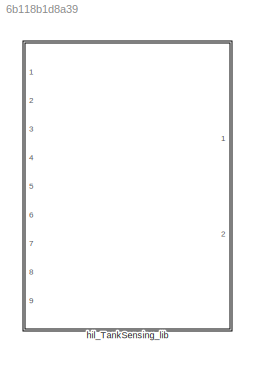
MODEL slx_6b118b1d8a39
KIND library
CONFIG AbsTol = auto
CONFIG EnableMultiTasking = off
CONFIG FixedStep = auto
CONFIG MaxStep = auto
CONFIG MinStep = auto
CONFIG RelTol = 1e-3
CONFIG SampleTimeConstraint = Unconstrained
CONFIG Solver = VariableStepAuto
CONFIG SolverName = VariableStepAuto
CONFIG StartTime = 0.0
CONFIG StopTime = 10.0
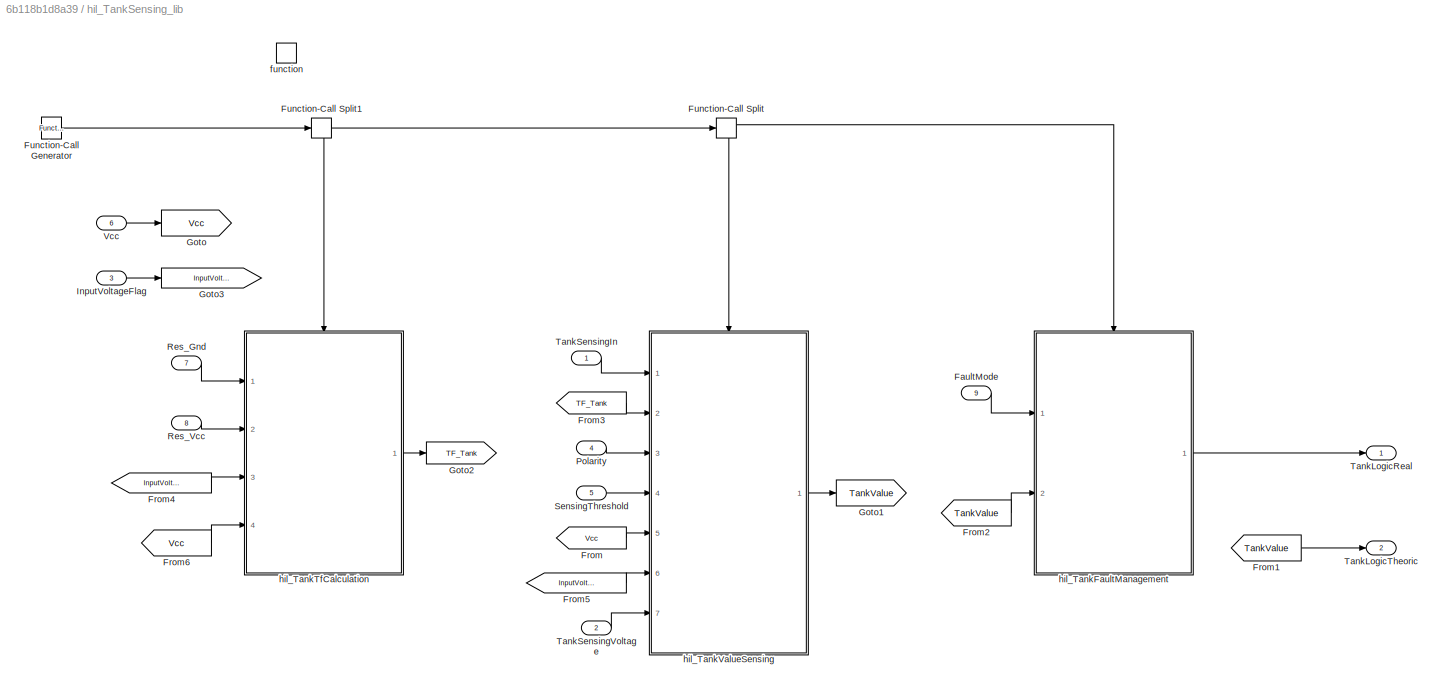
BLOCK [SubSystem] hil_TankSensing_lib
  Ports = [9, 2, 0, 1]
  RTWFcnName = hil_tanksensing_lib
  RTWFcnNameOpts = User specified
  RTWSystemCode = Reusable function
  RequestExecContextInheritance = off
  TreatAsAtomicUnit = on
BLOCK [Inport] hil_TankSensing_lib/FaultMode 
  IconDisplay = Port number
  Port = 9
BLOCK [From] hil_TankSensing_lib/From
  GotoTag = Vcc
BLOCK [From] hil_TankSensing_lib/From1
  GotoTag = TankValue
BLOCK [From] hil_TankSensing_lib/From2
  GotoTag = TankValue
BLOCK [From] hil_TankSensing_lib/From3
  GotoTag = TF_Tank
BLOCK [From] hil_TankSensing_lib/From4
  GotoTag = InputVoltageFlag
BLOCK [From] hil_TankSensing_lib/From5
  GotoTag = InputVoltageFlag
BLOCK [From] hil_TankSensing_lib/From6
  GotoTag = Vcc
BLOCK [Reference] hil_TankSensing_lib/Function-Call Generator  REF=simulink/Ports &
Subsystems/Function-Call
Generator
  Ports = [0, 1]
  SourceBlock = simulink/Ports &\nSubsystems/Function-Call\nGenerator
  SourceProductBaseCode = SL
  SourceProductName = Simulink
  SourceType = Function-Call Generator
BLOCK [FunctionCallSplit] hil_TankSensing_lib/Function-Call Split
  NumOutputPorts = 2
  OutputPortLayout = default
  Ports = [1, 2]
BLOCK [FunctionCallSplit] hil_TankSensing_lib/Function-Call Split1
  NumOutputPorts = 2
  OutputPortLayout = default
  Ports = [1, 2]
BLOCK [Goto] hil_TankSensing_lib/Goto
  GotoTag = Vcc
BLOCK [Goto] hil_TankSensing_lib/Goto1
  GotoTag = TankValue
BLOCK [Goto] hil_TankSensing_lib/Goto2
  GotoTag = TF_Tank
BLOCK [Goto] hil_TankSensing_lib/Goto3
  GotoTag = InputVoltageFlag
BLOCK [Inport] hil_TankSensing_lib/InputVoltageFlag
  IconDisplay = Port number
  Port = 3
BLOCK [Inport] hil_TankSensing_lib/Polarity
  IconDisplay = Port number
  Port = 4
BLOCK [Inport] hil_TankSensing_lib/Res_Gnd
  IconDisplay = Port number
  Port = 7
BLOCK [Inport] hil_TankSensing_lib/Res_Vcc
  IconDisplay = Port number
  Port = 8
BLOCK [Inport] hil_TankSensing_lib/SensingThreshold 
  IconDisplay = Port number
  Port = 5
BLOCK [Outport] hil_TankSensing_lib/TankLogicReal
  IconDisplay = Port number
  OutDataTypeStr = uint8
BLOCK [Outport] hil_TankSensing_lib/TankLogicTheoric
  IconDisplay = Port number
  OutDataTypeStr = uint8
  Port = 2
BLOCK [Inport] hil_TankSensing_lib/TankSensingIn
  IconDisplay = Port number
BLOCK [Inport] hil_TankSensing_lib/TankSensingVoltage
  IconDisplay = Port number
  Port = 2
BLOCK [Inport] hil_TankSensing_lib/Vcc
  IconDisplay = Port number
  Port = 6
BLOCK [TriggerPort] hil_TankSensing_lib/function
  Ports = []
  StatesWhenEnabling = held
  TriggerType = function-call
  VariantControl = Variant
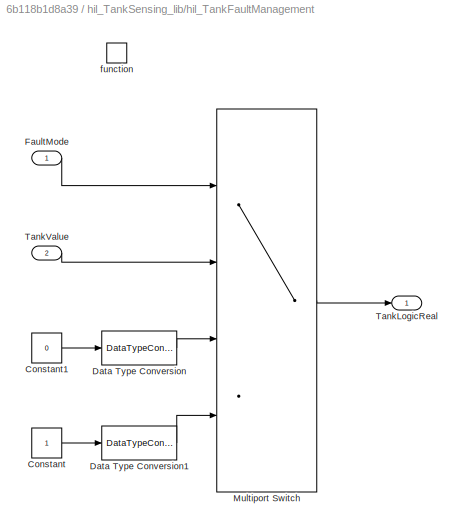
BLOCK [SubSystem] hil_TankSensing_lib/hil_TankFaultManagement
  Ports = [2, 1, 0, 1]
  RequestExecContextInheritance = off
  TreatAsAtomicUnit = on
BLOCK [Constant] hil_TankSensing_lib/hil_TankFaultManagement/Constant
BLOCK [Constant] hil_TankSensing_lib/hil_TankFaultManagement/Constant1
  Value = 0
BLOCK [DataTypeConversion] hil_TankSensing_lib/hil_TankFaultManagement/Data Type Conversion
  OutDataTypeStr = uint8
  RndMeth = Floor
  SaturateOnIntegerOverflow = off
BLOCK [DataTypeConversion] hil_TankSensing_lib/hil_TankFaultManagement/Data Type Conversion1
  OutDataTypeStr = uint8
  RndMeth = Floor
  SaturateOnIntegerOverflow = off
BLOCK [Inport] hil_TankSensing_lib/hil_TankFaultManagement/FaultMode
  IconDisplay = Port number
BLOCK [MultiPortSwitch] hil_TankSensing_lib/hil_TankFaultManagement/Multiport Switch
  DataPortOrder = Zero-based contiguous
  DiagnosticForDefault = None
  InputSameDT = off
  Ports = [4, 1]
  SaturateOnIntegerOverflow = off
  zeroidx = on
BLOCK [Outport] hil_TankSensing_lib/hil_TankFaultManagement/TankLogicReal
  IconDisplay = Port number
BLOCK [Inport] hil_TankSensing_lib/hil_TankFaultManagement/TankValue
  IconDisplay = Port number
  Port = 2
BLOCK [TriggerPort] hil_TankSensing_lib/hil_TankFaultManagement/function
  Ports = []
  StatesWhenEnabling = held
  TriggerType = function-call
  VariantControl = Variant
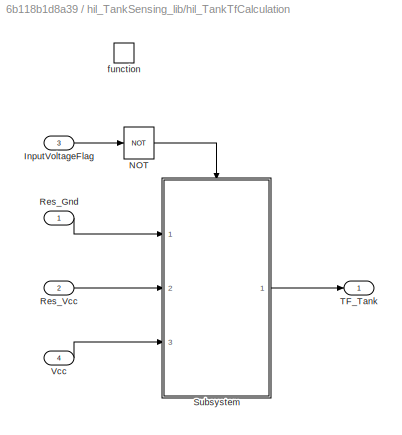
BLOCK [SubSystem] hil_TankSensing_lib/hil_TankTfCalculation
  Ports = [4, 1, 0, 1]
  RequestExecContextInheritance = off
  TreatAsAtomicUnit = on
BLOCK [Inport] hil_TankSensing_lib/hil_TankTfCalculation/InputVoltageFlag
  IconDisplay = Port number
  Port = 3
BLOCK [Logic] hil_TankSensing_lib/hil_TankTfCalculation/NOT
  AllPortsSameDT = off
  IconShape = distinctive
  Operator = NOT
  OutDataTypeStr = boolean
  Ports = [1, 1]
BLOCK [Inport] hil_TankSensing_lib/hil_TankTfCalculation/Res_Gnd
  IconDisplay = Port number
BLOCK [Inport] hil_TankSensing_lib/hil_TankTfCalculation/Res_Vcc
  IconDisplay = Port number
  Port = 2
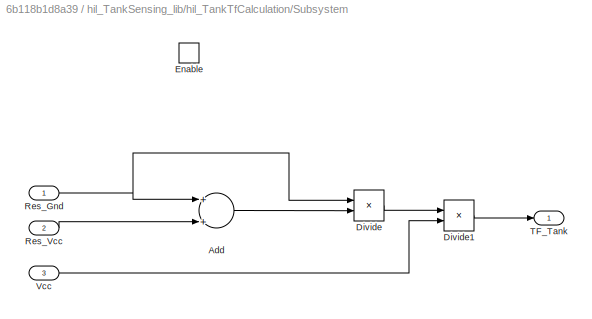
BLOCK [SubSystem] hil_TankSensing_lib/hil_TankTfCalculation/Subsystem
  Ports = [3, 1, 1]
  RequestExecContextInheritance = off
BLOCK [Sum] hil_TankSensing_lib/hil_TankTfCalculation/Subsystem/Add
  InputSameDT = off
  OutDataTypeStr = Inherit: Inherit via internal rule
  Ports = [2, 1]
  SaturateOnIntegerOverflow = off
BLOCK [Product] hil_TankSensing_lib/hil_TankTfCalculation/Subsystem/Divide
  InputSameDT = off
  Inputs = */
  OutDataTypeStr = Inherit: Inherit via internal rule
  Ports = [2, 1]
  RndMeth = Floor
  SaturateOnIntegerOverflow = off
BLOCK [Product] hil_TankSensing_lib/hil_TankTfCalculation/Subsystem/Divide1
  InputSameDT = off
  Inputs = **
  OutDataTypeStr = Inherit: Inherit via internal rule
  Ports = [2, 1]
  RndMeth = Floor
  SaturateOnIntegerOverflow = off
BLOCK [EnablePort] hil_TankSensing_lib/hil_TankTfCalculation/Subsystem/Enable
  Ports = []
BLOCK [Inport] hil_TankSensing_lib/hil_TankTfCalculation/Subsystem/Res_Gnd
  IconDisplay = Port number
BLOCK [Inport] hil_TankSensing_lib/hil_TankTfCalculation/Subsystem/Res_Vcc
  IconDisplay = Port number
  Port = 2
BLOCK [Outport] hil_TankSensing_lib/hil_TankTfCalculation/Subsystem/TF_Tank
  IconDisplay = Port number
  InitialOutput = [single(0)]
  OutDataTypeStr = single
  OutputWhenDisabled = reset
BLOCK [Inport] hil_TankSensing_lib/hil_TankTfCalculation/Subsystem/Vcc
  IconDisplay = Port number
  Port = 3
BLOCK [Outport] hil_TankSensing_lib/hil_TankTfCalculation/TF_Tank
  IconDisplay = Port number
  OutDataTypeStr = single
BLOCK [Inport] hil_TankSensing_lib/hil_TankTfCalculation/Vcc 
  IconDisplay = Port number
  Port = 4
BLOCK [TriggerPort] hil_TankSensing_lib/hil_TankTfCalculation/function
  Ports = []
  StatesWhenEnabling = held
  TriggerType = function-call
  VariantControl = Variant
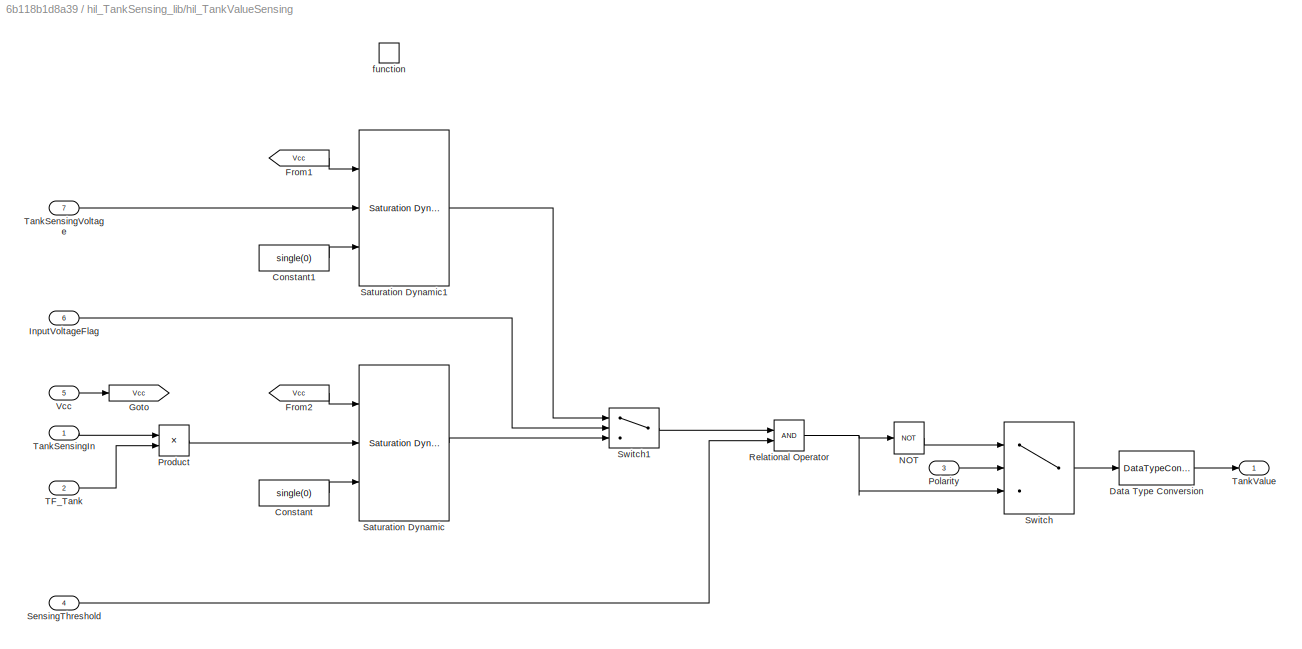
BLOCK [SubSystem] hil_TankSensing_lib/hil_TankValueSensing
  Ports = [7, 1, 0, 1]
  RequestExecContextInheritance = off
  TreatAsAtomicUnit = on
BLOCK [Constant] hil_TankSensing_lib/hil_TankValueSensing/Constant
  Value = single(0)
BLOCK [Constant] hil_TankSensing_lib/hil_TankValueSensing/Constant1
  Value = single(0)
BLOCK [DataTypeConversion] hil_TankSensing_lib/hil_TankValueSensing/Data Type Conversion
  OutDataTypeStr = uint8
  RndMeth = Floor
  SaturateOnIntegerOverflow = off
BLOCK [From] hil_TankSensing_lib/hil_TankValueSensing/From1
  GotoTag = Vcc
BLOCK [From] hil_TankSensing_lib/hil_TankValueSensing/From2
  GotoTag = Vcc
BLOCK [Goto] hil_TankSensing_lib/hil_TankValueSensing/Goto
  GotoTag = Vcc
BLOCK [Inport] hil_TankSensing_lib/hil_TankValueSensing/InputVoltageFlag
  IconDisplay = Port number
  Port = 6
BLOCK [Logic] hil_TankSensing_lib/hil_TankValueSensing/NOT
  AllPortsSameDT = off
  IconShape = distinctive
  Operator = NOT
  OutDataTypeStr = boolean
  Ports = [1, 1]
BLOCK [Inport] hil_TankSensing_lib/hil_TankValueSensing/Polarity
  IconDisplay = Port number
  Port = 3
BLOCK [Product] hil_TankSensing_lib/hil_TankValueSensing/Product
  InputSameDT = off
  OutDataTypeStr = Inherit: Inherit via internal rule
  Ports = [2, 1]
  RndMeth = Floor
  SaturateOnIntegerOverflow = off
BLOCK [RelationalOperator] hil_TankSensing_lib/hil_TankValueSensing/Relational Operator
  InputSameDT = off
  OutDataTypeStr = boolean
  Ports = [2, 1]
  RndMeth = Zero
BLOCK [Reference] hil_TankSensing_lib/hil_TankValueSensing/Saturation Dynamic  REF=simulink/Discontinuities/Saturation
Dynamic
  Ports = [3, 1]
  SourceBlock = simulink/Discontinuities/Saturation\nDynamic
  SourceProductBaseCode = SL
  SourceProductName = Simulink
  SourceType = Saturation Dynamic
BLOCK [Reference] hil_TankSensing_lib/hil_TankValueSensing/Saturation Dynamic1  REF=simulink/Discontinuities/Saturation
Dynamic
  Ports = [3, 1]
  SourceBlock = simulink/Discontinuities/Saturation\nDynamic
  SourceProductBaseCode = SL
  SourceProductName = Simulink
  SourceType = Saturation Dynamic
BLOCK [Inport] hil_TankSensing_lib/hil_TankValueSensing/SensingThreshold
  IconDisplay = Port number
  Port = 4
BLOCK [Switch] hil_TankSensing_lib/hil_TankValueSensing/Switch
  Criteria = u2 > Threshold
  InputSameDT = off
  SaturateOnIntegerOverflow = off
BLOCK [Switch] hil_TankSensing_lib/hil_TankValueSensing/Switch1
  Criteria = u2 > Threshold
  InputSameDT = off
  SaturateOnIntegerOverflow = off
BLOCK [Inport] hil_TankSensing_lib/hil_TankValueSensing/TF_Tank
  IconDisplay = Port number
  Port = 2
BLOCK [Inport] hil_TankSensing_lib/hil_TankValueSensing/TankSensingIn
  IconDisplay = Port number
BLOCK [Inport] hil_TankSensing_lib/hil_TankValueSensing/TankSensingVoltage
  IconDisplay = Port number
  Port = 7
BLOCK [Outport] hil_TankSensing_lib/hil_TankValueSensing/TankValue 
  IconDisplay = Port number
BLOCK [Inport] hil_TankSensing_lib/hil_TankValueSensing/Vcc 
  IconDisplay = Port number
  Port = 5
BLOCK [TriggerPort] hil_TankSensing_lib/hil_TankValueSensing/function
  Ports = []
  StatesWhenEnabling = held
  TriggerType = function-call
  VariantControl = Variant
LINE hil_TankSensing_lib/FaultMode :1 -> hil_TankSensing_lib/hil_TankFaultManagement:1
LINE hil_TankSensing_lib/From1:1 -> hil_TankSensing_lib/TankLogicTheoric:1
LINE hil_TankSensing_lib/From2:1 -> hil_TankSensing_lib/hil_TankFaultManagement:2
LINE hil_TankSensing_lib/From3:1 -> hil_TankSensing_lib/hil_TankValueSensing:2
LINE hil_TankSensing_lib/From4:1 -> hil_TankSensing_lib/hil_TankTfCalculation:3
LINE hil_TankSensing_lib/From5:1 -> hil_TankSensing_lib/hil_TankValueSensing:6
LINE hil_TankSensing_lib/From6:1 -> hil_TankSensing_lib/hil_TankTfCalculation:4
LINE hil_TankSensing_lib/From:1 -> hil_TankSensing_lib/hil_TankValueSensing:5
LINE hil_TankSensing_lib/Function-Call Generator:1 -> hil_TankSensing_lib/Function-Call Split1:1
LINE hil_TankSensing_lib/Function-Call Split1:1 -> hil_TankSensing_lib/Function-Call Split:1
LINE hil_TankSensing_lib/Function-Call Split1:2 -> hil_TankSensing_lib/hil_TankTfCalculation:trigger
LINE hil_TankSensing_lib/Function-Call Split:1 -> hil_TankSensing_lib/hil_TankFaultManagement:trigger
LINE hil_TankSensing_lib/Function-Call Split:2 -> hil_TankSensing_lib/hil_TankValueSensing:trigger
LINE hil_TankSensing_lib/InputVoltageFlag:1 -> hil_TankSensing_lib/Goto3:1
LINE hil_TankSensing_lib/Polarity:1 -> hil_TankSensing_lib/hil_TankValueSensing:3
LINE hil_TankSensing_lib/Res_Gnd:1 -> hil_TankSensing_lib/hil_TankTfCalculation:1
LINE hil_TankSensing_lib/Res_Vcc:1 -> hil_TankSensing_lib/hil_TankTfCalculation:2
LINE hil_TankSensing_lib/SensingThreshold :1 -> hil_TankSensing_lib/hil_TankValueSensing:4
LINE hil_TankSensing_lib/TankSensingIn:1 -> hil_TankSensing_lib/hil_TankValueSensing:1
LINE hil_TankSensing_lib/TankSensingVoltage:1 -> hil_TankSensing_lib/hil_TankValueSensing:7
LINE hil_TankSensing_lib/Vcc:1 -> hil_TankSensing_lib/Goto:1
LINE hil_TankSensing_lib/hil_TankFaultManagement/Constant1:1 -> hil_TankSensing_lib/hil_TankFaultManagement/Data Type Conversion:1
LINE hil_TankSensing_lib/hil_TankFaultManagement/Constant:1 -> hil_TankSensing_lib/hil_TankFaultManagement/Data Type Conversion1:1
LINE hil_TankSensing_lib/hil_TankFaultManagement/Data Type Conversion1:1 -> hil_TankSensing_lib/hil_TankFaultManagement/Multiport Switch:4
LINE hil_TankSensing_lib/hil_TankFaultManagement/Data Type Conversion:1 -> hil_TankSensing_lib/hil_TankFaultManagement/Multiport Switch:3
LINE hil_TankSensing_lib/hil_TankFaultManagement/FaultMode:1 -> hil_TankSensing_lib/hil_TankFaultManagement/Multiport Switch:1
LINE hil_TankSensing_lib/hil_TankFaultManagement/Multiport Switch:1 -> hil_TankSensing_lib/hil_TankFaultManagement/TankLogicReal:1
LINE hil_TankSensing_lib/hil_TankFaultManagement/TankValue:1 -> hil_TankSensing_lib/hil_TankFaultManagement/Multiport Switch:2
LINE hil_TankSensing_lib/hil_TankFaultManagement:1 -> hil_TankSensing_lib/TankLogicReal:1
LINE hil_TankSensing_lib/hil_TankTfCalculation/InputVoltageFlag:1 -> hil_TankSensing_lib/hil_TankTfCalculation/NOT:1
LINE hil_TankSensing_lib/hil_TankTfCalculation/NOT:1 -> hil_TankSensing_lib/hil_TankTfCalculation/Subsystem:enable
LINE hil_TankSensing_lib/hil_TankTfCalculation/Res_Gnd:1 -> hil_TankSensing_lib/hil_TankTfCalculation/Subsystem:1
LINE hil_TankSensing_lib/hil_TankTfCalculation/Res_Vcc:1 -> hil_TankSensing_lib/hil_TankTfCalculation/Subsystem:2
LINE hil_TankSensing_lib/hil_TankTfCalculation/Subsystem/Add:1 -> hil_TankSensing_lib/hil_TankTfCalculation/Subsystem/Divide:2
LINE hil_TankSensing_lib/hil_TankTfCalculation/Subsystem/Divide1:1 -> hil_TankSensing_lib/hil_TankTfCalculation/Subsystem/TF_Tank:1
LINE hil_TankSensing_lib/hil_TankTfCalculation/Subsystem/Divide:1 -> hil_TankSensing_lib/hil_TankTfCalculation/Subsystem/Divide1:1
NET hil_TankSensing_lib/hil_TankTfCalculation/Subsystem/Res_Gnd:1 -> hil_TankSensing_lib/hil_TankTfCalculation/Subsystem/Add:1, hil_TankSensing_lib/hil_TankTfCalculation/Subsystem/Divide:1
LINE hil_TankSensing_lib/hil_TankTfCalculation/Subsystem/Res_Vcc:1 -> hil_TankSensing_lib/hil_TankTfCalculation/Subsystem/Add:2
LINE hil_TankSensing_lib/hil_TankTfCalculation/Subsystem/Vcc:1 -> hil_TankSensing_lib/hil_TankTfCalculation/Subsystem/Divide1:2
LINE hil_TankSensing_lib/hil_TankTfCalculation/Subsystem:1 -> hil_TankSensing_lib/hil_TankTfCalculation/TF_Tank:1
LINE hil_TankSensing_lib/hil_TankTfCalculation/Vcc :1 -> hil_TankSensing_lib/hil_TankTfCalculation/Subsystem:3
LINE hil_TankSensing_lib/hil_TankTfCalculation:1 -> hil_TankSensing_lib/Goto2:1
LINE hil_TankSensing_lib/hil_TankValueSensing/Constant1:1 -> hil_TankSensing_lib/hil_TankValueSensing/Saturation Dynamic1:3
LINE hil_TankSensing_lib/hil_TankValueSensing/Constant:1 -> hil_TankSensing_lib/hil_TankValueSensing/Saturation Dynamic:3
LINE hil_TankSensing_lib/hil_TankValueSensing/Data Type Conversion:1 -> hil_TankSensing_lib/hil_TankValueSensing/TankValue :1
LINE hil_TankSensing_lib/hil_TankValueSensing/From1:1 -> hil_TankSensing_lib/hil_TankValueSensing/Saturation Dynamic1:1
LINE hil_TankSensing_lib/hil_TankValueSensing/From2:1 -> hil_TankSensing_lib/hil_TankValueSensing/Saturation Dynamic:1
LINE hil_TankSensing_lib/hil_TankValueSensing/InputVoltageFlag:1 -> hil_TankSensing_lib/hil_TankValueSensing/Switch1:2
LINE hil_TankSensing_lib/hil_TankValueSensing/NOT:1 -> hil_TankSensing_lib/hil_TankValueSensing/Switch:1
LINE hil_TankSensing_lib/hil_TankValueSensing/Polarity:1 -> hil_TankSensing_lib/hil_TankValueSensing/Switch:2
LINE hil_TankSensing_lib/hil_TankValueSensing/Product:1 -> hil_TankSensing_lib/hil_TankValueSensing/Saturation Dynamic:2
NET hil_TankSensing_lib/hil_TankValueSensing/Relational Operator:1 -> hil_TankSensing_lib/hil_TankValueSensing/NOT:1, hil_TankSensing_lib/hil_TankValueSensing/Switch:3
LINE hil_TankSensing_lib/hil_TankValueSensing/Saturation Dynamic1:1 -> hil_TankSensing_lib/hil_TankValueSensing/Switch1:1
LINE hil_TankSensing_lib/hil_TankValueSensing/Saturation Dynamic:1 -> hil_TankSensing_lib/hil_TankValueSensing/Switch1:3
LINE hil_TankSensing_lib/hil_TankValueSensing/SensingThreshold:1 -> hil_TankSensing_lib/hil_TankValueSensing/Relational Operator:2
LINE hil_TankSensing_lib/hil_TankValueSensing/Switch1:1 -> hil_TankSensing_lib/hil_TankValueSensing/Relational Operator:1
LINE hil_TankSensing_lib/hil_TankValueSensing/Switch:1 -> hil_TankSensing_lib/hil_TankValueSensing/Data Type Conversion:1
LINE hil_TankSensing_lib/hil_TankValueSensing/TF_Tank:1 -> hil_TankSensing_lib/hil_TankValueSensing/Product:2
LINE hil_TankSensing_lib/hil_TankValueSensing/TankSensingIn:1 -> hil_TankSensing_lib/hil_TankValueSensing/Product:1
LINE hil_TankSensing_lib/hil_TankValueSensing/TankSensingVoltage:1 -> hil_TankSensing_lib/hil_TankValueSensing/Saturation Dynamic1:2
LINE hil_TankSensing_lib/hil_TankValueSensing/Vcc :1 -> hil_TankSensing_lib/hil_TankValueSensing/Goto:1
LINE hil_TankSensing_lib/hil_TankValueSensing:1 -> hil_TankSensing_lib/Goto1:1
note: NET lines group one-source signal fan-out (src -> all destinations, sorted); 1:1 wires keep LINE
